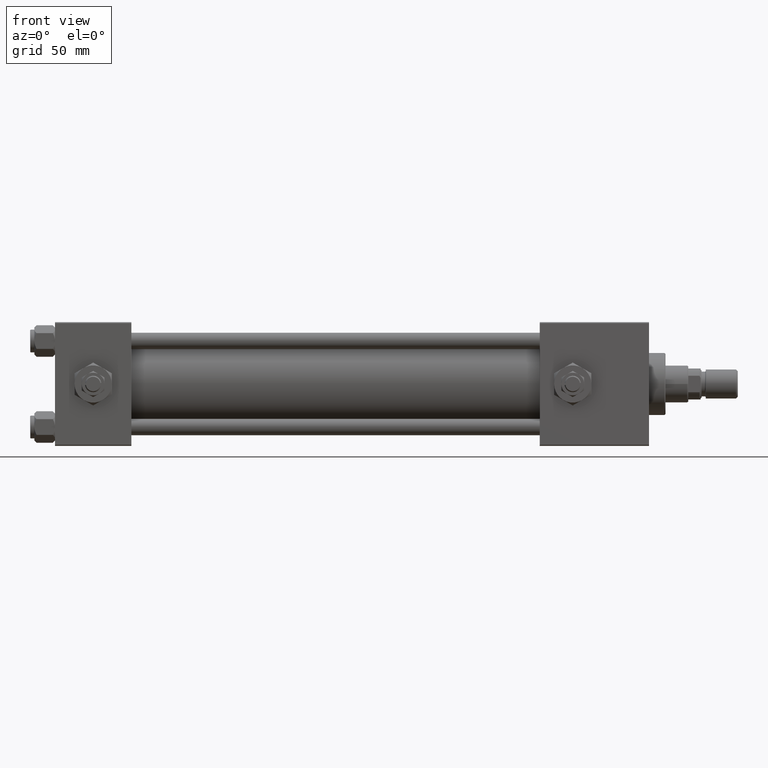
[diagram: clean part render]
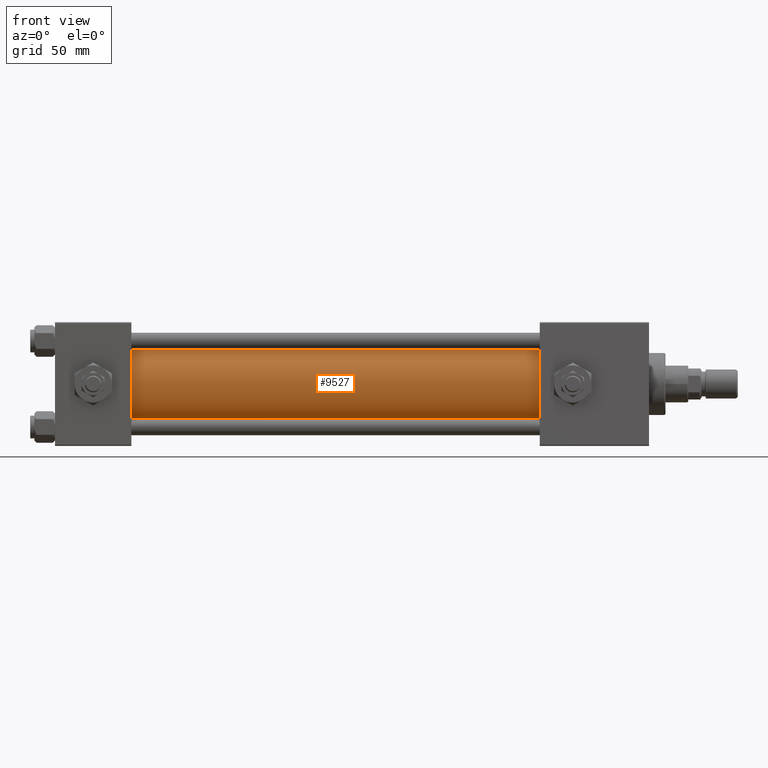
[diagram: same view with one face highlighted and labeled with its STEP entity id]
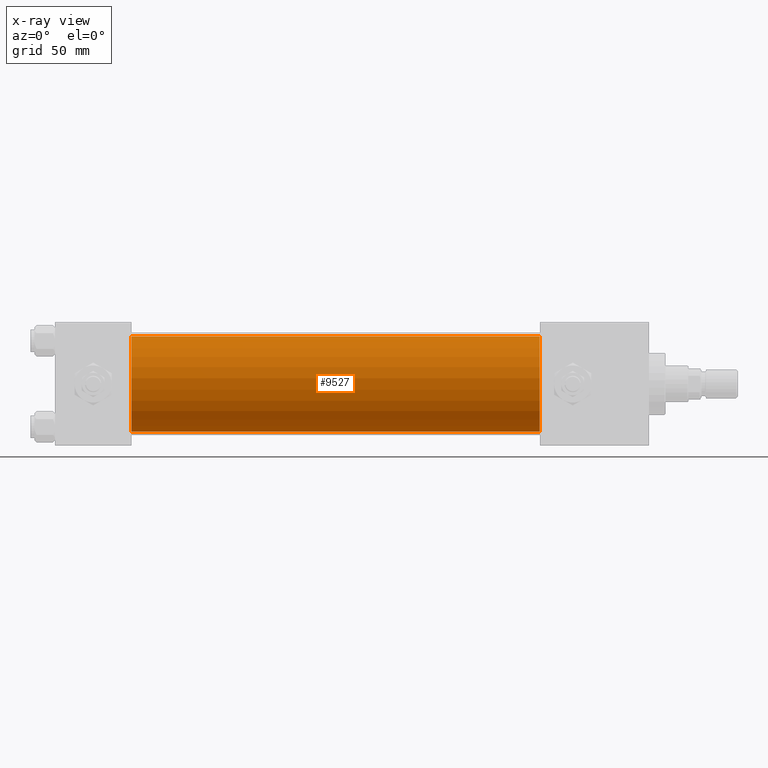
[diagram: x-ray of the same camera — body ghosted, the highlighted face saturated]
A machine part, front view. The second image highlights one B-rep face of the part: STEP entity #9527.
The next image is the same camera in x-ray: the body ghosted, the highlighted face saturated — about 0% of this face is hidden behind the body in this view.
In plain terms, the highlighted cylindrical surface (partial cylindrical patch) has radius 23 mm, axis along (-1, -0, -0).
Its self-contained STEP definition (entity closure, byte-faithful):
#1019 = VERTEX_POINT ( 'NONE', #52811 ) ;
#2520 = ORIENTED_EDGE ( 'NONE', *, *, #15805, .F. ) ;
#2577 = VERTEX_POINT ( 'NONE', #16032 ) ;
#3507 = EDGE_LOOP ( 'NONE', ( #2520, #7629, #46373, #26329 ) ) ;
#3563 = DIRECTION ( 'NONE',  ( 0.000000000000000000, 0.000000000000000000, -1.000000000000000000 ) ) ;
#5594 = EDGE_CURVE ( 'NONE', #2577, #30757, #19406, .T. ) ;
#7629 = ORIENTED_EDGE ( 'NONE', *, *, #10618, .F. ) ;
#7700 = CYLINDRICAL_SURFACE ( 'NONE', #9893, 23.00000000000000000 ) ;
#8255 = VECTOR ( 'NONE', #50593, 1000.000000000000000 ) ;
#8762 = DIRECTION ( 'NONE',  ( 0.000000000000000000, 0.000000000000000000, 1.000000000000000000 ) ) ;
#9527 = ADVANCED_FACE ( 'NONE', ( #24286 ), #7700, .T. ) ;
#9893 = AXIS2_PLACEMENT_3D ( 'NONE', #20276, #11975, #8762 ) ;
#10618 = EDGE_CURVE ( 'NONE', #2577, #1019, #43212, .T. ) ;
#11975 = DIRECTION ( 'NONE',  ( -1.000000000000000000, -0.000000000000000000, -0.000000000000000000 ) ) ;
#13686 = LINE ( 'NONE', #30256, #8255 ) ;
#14624 = CARTESIAN_POINT ( 'NONE',  ( 37.00000000000000711, 2.146024240737016609E-16, -23.00000000000000000 ) ) ;
#15805 = EDGE_CURVE ( 'NONE', #1019, #38959, #13686, .T. ) ;
#16032 = CARTESIAN_POINT ( 'NONE',  ( 235.0000000000000284, -2.602085213965210642E-15, 23.00000000000000000 ) ) ;
#19406 = LINE ( 'NONE', #40235, #42230 ) ;
#19745 = CARTESIAN_POINT ( 'NONE',  ( 37.00000000000000711, -2.602085213965210642E-15, 0.000000000000000000 ) ) ;
#20151 = AXIS2_PLACEMENT_3D ( 'NONE', #27914, #44238, #3563 ) ;
#20276 = CARTESIAN_POINT ( 'NONE',  ( 235.0000000000000284, -2.602085213965210642E-15, 0.000000000000000000 ) ) ;
#24286 = FACE_OUTER_BOUND ( 'NONE', #3507, .T. ) ;
#26329 = ORIENTED_EDGE ( 'NONE', *, *, #52009, .T. ) ;
#27914 = CARTESIAN_POINT ( 'NONE',  ( 235.0000000000000284, -2.602085213965210642E-15, 0.000000000000000000 ) ) ;
#30256 = CARTESIAN_POINT ( 'NONE',  ( 235.0000000000000284, 2.146024240737016609E-16, -23.00000000000000000 ) ) ;
#30757 = VERTEX_POINT ( 'NONE', #44378 ) ;
#30991 = DIRECTION ( 'NONE',  ( 0.000000000000000000, 0.000000000000000000, 1.000000000000000000 ) ) ;
#31220 = AXIS2_PLACEMENT_3D ( 'NONE', #19745, #36035, #30991 ) ;
#36035 = DIRECTION ( 'NONE',  ( 1.000000000000000000, -0.000000000000000000, 0.000000000000000000 ) ) ;
#36218 = DIRECTION ( 'NONE',  ( -1.000000000000000000, -0.000000000000000000, -0.000000000000000000 ) ) ;
#38959 = VERTEX_POINT ( 'NONE', #14624 ) ;
#40235 = CARTESIAN_POINT ( 'NONE',  ( 235.0000000000000284, -2.602085213965210642E-15, 23.00000000000000000 ) ) ;
#42230 = VECTOR ( 'NONE', #36218, 1000.000000000000000 ) ;
#43212 = CIRCLE ( 'NONE', #20151, 23.00000000000000000 ) ;
#44238 = DIRECTION ( 'NONE',  ( 1.000000000000000000, 0.000000000000000000, 0.000000000000000000 ) ) ;
#44378 = CARTESIAN_POINT ( 'NONE',  ( 37.00000000000000711, -2.602085213965210642E-15, 23.00000000000000000 ) ) ;
#46373 = ORIENTED_EDGE ( 'NONE', *, *, #5594, .T. ) ;
#47443 = CIRCLE ( 'NONE', #31220, 23.00000000000000000 ) ;
#50593 = DIRECTION ( 'NONE',  ( -1.000000000000000000, -0.000000000000000000, -0.000000000000000000 ) ) ;
#52009 = EDGE_CURVE ( 'NONE', #30757, #38959, #47443, .T. ) ;
#52811 = CARTESIAN_POINT ( 'NONE',  ( 235.0000000000000284, 2.146024240737016609E-16, -23.00000000000000000 ) ) ;